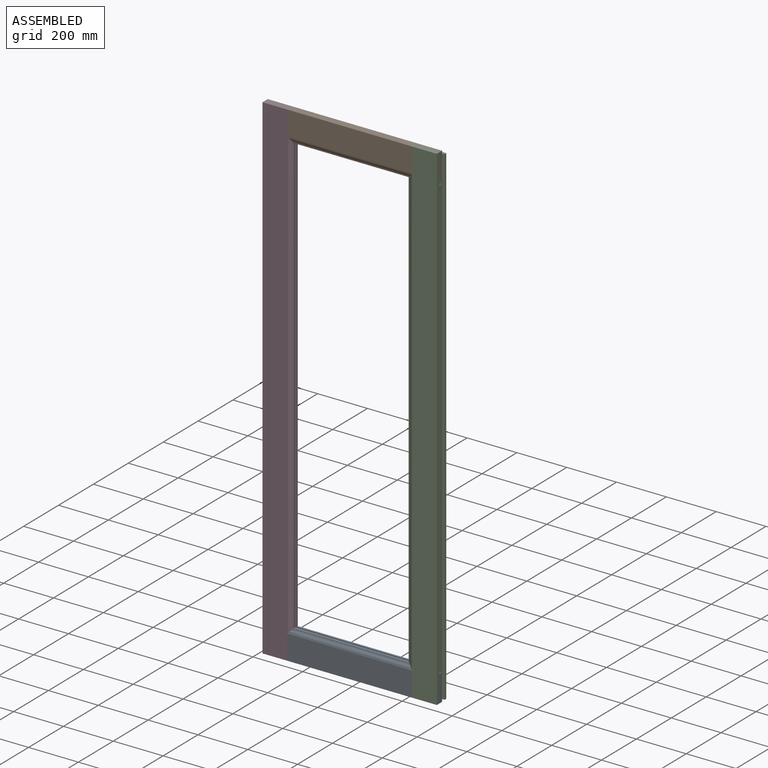
[diagram: assembled view]
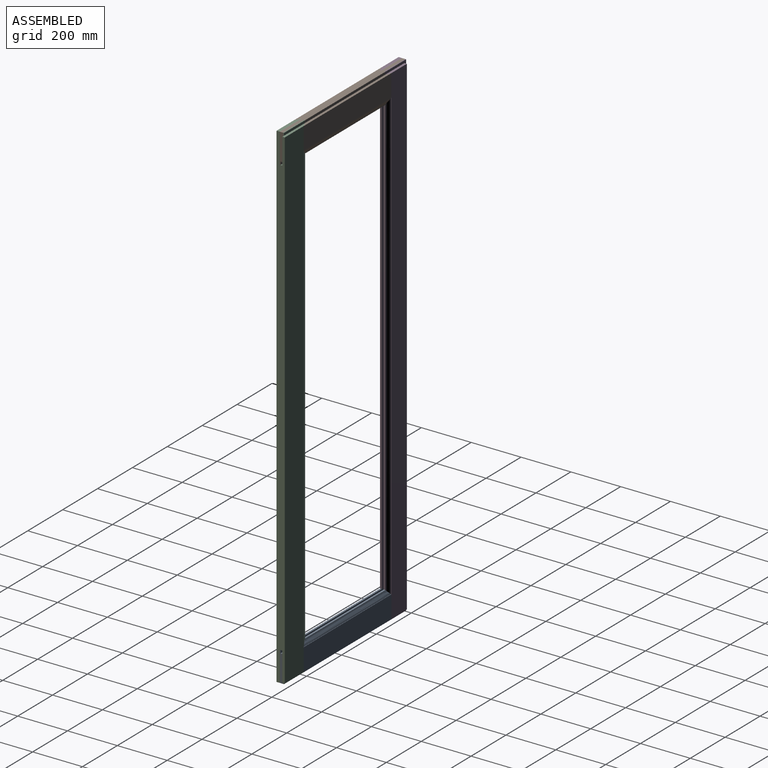
[diagram: assembled view, second angle]
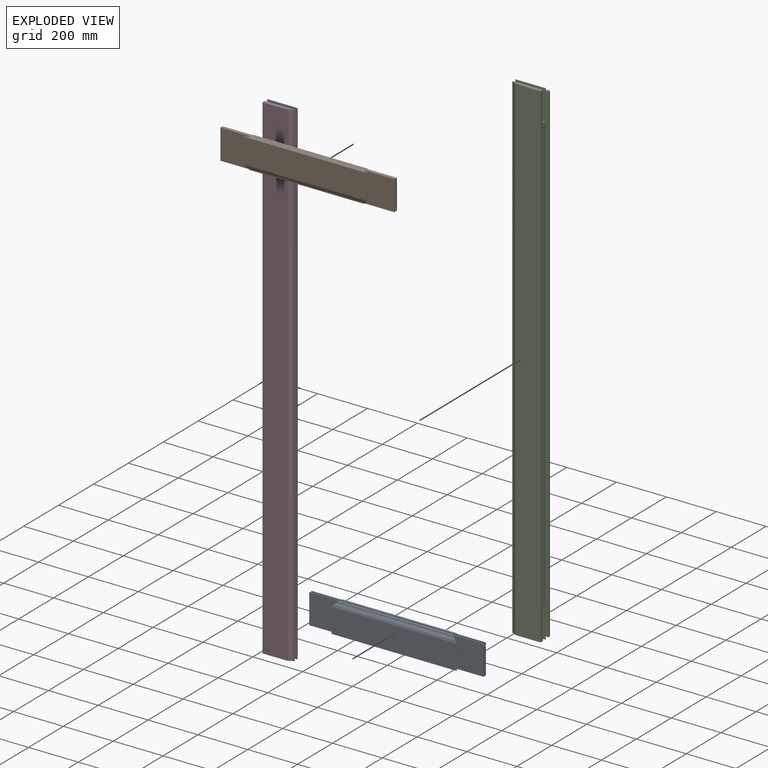
[diagram: exploded view]
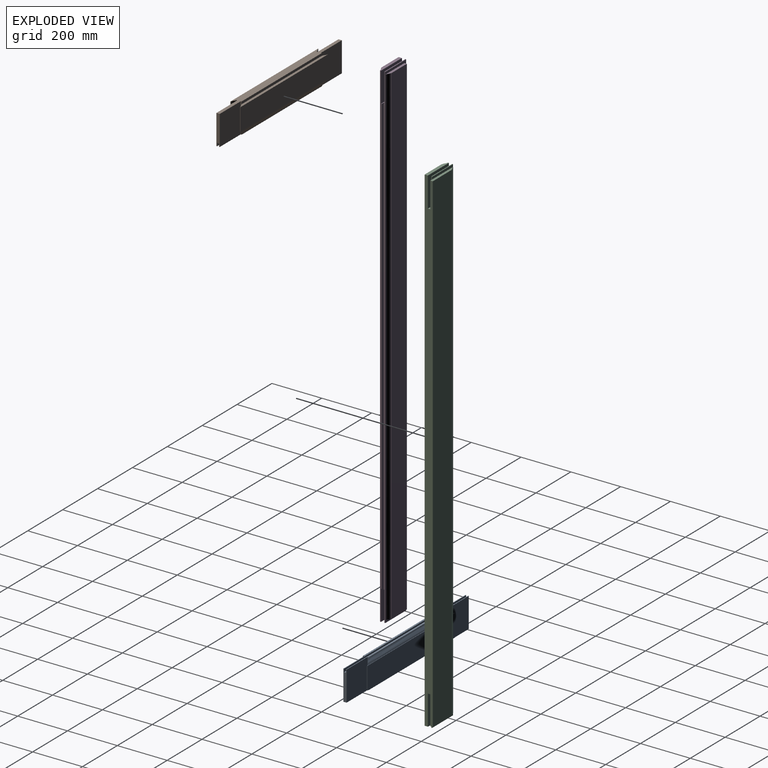
[diagram: exploded view, second angle]
ASSEMBLY  parts=4 mates=3
PART A: 32 faces, bbox 120x40x700 mm
  f0: plane 700x30mm, normal (-1,0,0), area 17224mm2, adj f2,f3,f8,f9,f10,f11,f12,f13
  f1: plane 700x6.67mm, normal (1,0,0), area 3706.7mm2, adj f2,f3,f13,f16,f19,f20,f25,f27
  f2: plane 120x13.33mm, normal (0,0,1), area 1504mm2, adj f0,f1,f4,f13,f14,f27,f28,f29
  f3: plane 120x13.33mm, normal (0,0,-1), area 1504mm2, adj f0,f1,f4,f11,f16,f27,f28,f29
  f4: plane 700x6.67mm, normal (1,0,0), area 3706.7mm2, adj f2,f3,f11,f14,f17,f21,f23,f29
  f5: plane 502x89mm, normal (0,-1,0), area 44678mm2, adj f6,f7,f24,f31
  f6: plane 89x1.33mm, normal (0,0,-1), area 118.7mm2, adj f5,f18,f24,f31
  f7: plane 89x1.33mm, normal (0,0,1), area 118.7mm2, adj f5,f22,f24,f31
  f8: extruded ~120x21mm, area 2504mm2, adj f0,f12,f19,f25
  f9: extruded ~120x21mm, area 2504mm2, adj f0,f15,f20,f25
  f10: plane 502x99mm, normal (0,1,0), area 49698mm2, adj f0,f12,f15,f26
  f11: plane 120x120mm, normal (0,-1,0), area 14400mm2, adj f0,f3,f4,f17
  f12: plane 99x1.33mm, normal (0,0,1), area 132mm2, adj f0,f8,f10,f26
  f13: plane 120x120mm, normal (0,1,0), area 14400mm2, adj f0,f1,f2,f19
  f14: plane 120x120mm, normal (0,-1,0), area 14400mm2, adj f0,f2,f4,f21
  f15: plane 99x1.33mm, normal (0,0,-1), area 132mm2, adj f0,f9,f10,f26
  f16: plane 120x120mm, normal (0,1,0), area 14400mm2, adj f0,f1,f3,f20
  f17: plane 120x4mm, normal (0,0,-1), area 473.3mm2, adj f0,f4,f11,f18,f30,f31
  f18: extruded ~110x21mm, area 2275.3mm2, adj f6,f17,f23,f31
  f19: plane 120x4mm, normal (0,0,1), area 480mm2, adj f0,f1,f8,f13
  f20: plane 120x4mm, normal (0,0,-1), area 480mm2, adj f0,f1,f9,f16
  f21: plane 120x4mm, normal (0,0,1), area 473.3mm2, adj f0,f4,f14,f22,f30,f31
  f22: extruded ~110x21mm, area 2275.3mm2, adj f7,f21,f23,f31
  f23: extruded ~502x21mm, area 10999.2mm2, adj f4,f18,f22,f24
  f24: plane 502x1.33mm, normal (1,0,0), area 669.3mm2, adj f5,f6,f7,f23
  f25: extruded ~502x21mm, area 10999.2mm2, adj f1,f8,f9,f26
  f26: plane 502x1.33mm, normal (1,0,0), area 669.3mm2, adj f10,f12,f15,f25
  f27: plane 700x12mm, normal (0,-1,0), area 8400mm2, adj f1,f2,f3,f28
  f28: plane 700x8mm, normal (1,0,0), area 5600mm2, adj f2,f3,f27,f29
  f29: plane 700x12mm, normal (0,1,0), area 8400mm2, adj f2,f3,f4,f28
  f30: plane 460x10mm, normal (0,-1,0), area 4600mm2, adj f0,f17,f21,f31
  f31: plane 502x10mm, normal (-1,0,0), area 4824mm2, adj f5,f6,f7,f17,f18,f21,f22,f30
PART B: same geometry as A
PART C: 28 faces, bbox 130x40x2000 mm
  f0: plane 1980x109mm, normal (0,-1,0), area 215820mm2, adj f2,f23,f25,f27
  f1: plane 2000x30mm, normal (1,0,0), area 56800mm2, adj f4,f5,f6,f7,f9,f11,f12,f13
  f2: plane 1980x1.33mm, normal (-1,0,0), area 2633.4mm2, adj f0,f3,f23,f25
  f3: extruded ~1980x21mm, area 45277.4mm2, adj f2,f10,f23,f25
  f4: plane 120x3.33mm, normal (0,0,1), area 400mm2, adj f1,f10,f14,f22
  f5: plane 120x3.33mm, normal (0,0,-1), area 400mm2, adj f1,f10,f16,f24
  f6: plane 120x13.33mm, normal (0,0,1), area 1488.1mm2, adj f1,f8,f9,f13,f20,f21
  f7: plane 120x13.33mm, normal (0,0,-1), area 1488.1mm2, adj f1,f8,f9,f15,f20,f21
  f8: plane 2000x6.67mm, normal (-1,0,0), area 12700mm2, adj f6,f7,f11,f12,f13,f15,f17,f21
  f9: plane 2000x99mm, normal (0,1,0), area 198000mm2, adj f1,f6,f7,f20
  f10: plane 2000x6.67mm, normal (-1,0,0), area 12686.6mm2, adj f3,f4,f5,f11,f12,f14,f16,f18
  f11: plane 120x13.33mm, normal (0,0,1), area 1504mm2, adj f1,f8,f10,f13,f14,f17,f18,f19
  f12: plane 120x13.33mm, normal (0,0,-1), area 1504mm2, adj f1,f8,f10,f15,f16,f17,f18,f19
  f13: plane 120x120mm, normal (0,-1,0), area 14400mm2, adj f1,f6,f8,f11
  f14: plane 120x120mm, normal (0,1,0), area 14400mm2, adj f1,f4,f10,f11
  f15: plane 120x120mm, normal (0,-1,0), area 14400mm2, adj f1,f7,f8,f12
  f16: plane 120x120mm, normal (0,1,0), area 14400mm2, adj f1,f5,f10,f12
  f17: plane 1760x12mm, normal (0,-1,0), area 21120mm2, adj f8,f11,f12,f19
  f18: plane 1760x12mm, normal (0,1,0), area 21120mm2, adj f10,f11,f12,f19
  f19: plane 1760x8mm, normal (-1,0,0), area 14080mm2, adj f11,f12,f17,f18
  f20: plane 2000x1.33mm, normal (-1,0,0), area 2660mm2, adj f6,f7,f9,f21
  f21: extruded ~2000x21mm, area 45734.8mm2, adj f6,f7,f8,f20
  f22: plane 120x10mm, normal (0,-1,0), area 1200mm2, adj f1,f4,f10,f23
  f23: plane 130x10mm, normal (0,0,1), area 1188.1mm2, adj f0,f2,f3,f10,f22,f26,f27
  f24: plane 120x10mm, normal (0,-1,0), area 1200mm2, adj f1,f5,f10,f25
  f25: plane 130x10mm, normal (0,0,-1), area 1188.1mm2, adj f0,f2,f3,f10,f24,f26,f27
  f26: plane 1980x10mm, normal (0,1,0), area 19800mm2, adj f1,f23,f25,f27
  f27: plane 1980x10mm, normal (1,0,0), area 19800mm2, adj f0,f23,f25,f26
PART D: 26 faces, bbox 120x40x2000 mm
  f0: plane 1980x89mm, normal (0,-1,0), area 176220mm2, adj f1,f3,f24,f25
  f1: plane 1980x1.33mm, normal (1,0,0), area 2633.4mm2, adj f0,f2,f24,f25
  f2: extruded ~1980x21mm, area 45277.4mm2, adj f1,f7,f24,f25
  f3: plane 1980x10mm, normal (-1,0,0), area 19800mm2, adj f0,f23,f24,f25
  f4: plane 120x3.33mm, normal (0,0,-1), area 400mm2, adj f7,f11,f17,f23
  f5: plane 120x3.33mm, normal (0,0,1), area 400mm2, adj f7,f11,f15,f23
  f6: plane 120x13.33mm, normal (0,0,-1), area 1488.1mm2, adj f8,f11,f12,f16,f21,f22
  f7: plane 2000x6.67mm, normal (1,0,0), area 12686.6mm2, adj f2,f4,f5,f9,f10,f15,f17,f20
  f8: plane 2000x6.67mm, normal (1,0,0), area 12700mm2, adj f6,f9,f10,f13,f14,f16,f19,f22
  f9: plane 120x13.33mm, normal (0,0,1), area 1504mm2, adj f7,f8,f11,f14,f15,f18,f19,f20
  f10: plane 120x13.33mm, normal (0,0,-1), area 1504mm2, adj f7,f8,f11,f16,f17,f18,f19,f20
  f11: plane 2000x30mm, normal (-1,0,0), area 56800mm2, adj f4,f5,f6,f9,f10,f12,f13,f14
  f12: plane 2000x99mm, normal (0,1,0), area 198000mm2, adj f6,f11,f13,f21
  f13: plane 120x13.33mm, normal (0,0,1), area 1488.1mm2, adj f8,f11,f12,f14,f21,f22
  f14: plane 120x120mm, normal (0,-1,0), area 14400mm2, adj f8,f9,f11,f13
  f15: plane 120x120mm, normal (0,1,0), area 14400mm2, adj f5,f7,f9,f11
  f16: plane 120x120mm, normal (0,-1,0), area 14400mm2, adj f6,f8,f10,f11
  f17: plane 120x120mm, normal (0,1,0), area 14400mm2, adj f4,f7,f10,f11
  f18: plane 1760x8mm, normal (1,0,0), area 14080mm2, adj f9,f10,f19,f20
  f19: plane 1760x12mm, normal (0,-1,0), area 21120mm2, adj f8,f9,f10,f18
  f20: plane 1760x12mm, normal (0,1,0), area 21120mm2, adj f7,f9,f10,f18
  f21: plane 2000x1.33mm, normal (1,0,0), area 2660mm2, adj f6,f12,f13,f22
  f22: extruded ~2000x21mm, area 45734.8mm2, adj f6,f8,f13,f21
  f23: plane 2000x120mm, normal (0,-1,0), area 22200mm2, adj f3,f4,f5,f7,f11,f24,f25
  f24: plane 110x10mm, normal (0,0,1), area 988.1mm2, adj f0,f1,f2,f3,f7,f23
  f25: plane 110x10mm, normal (0,0,-1), area 988.1mm2, adj f0,f1,f2,f3,f7,f23
PLACE A rot(axis=(0.71,0,0.71),180deg) t=(-350,24.22,220)mm
PLACE B rot(axis=(-0.71,0,0.71),180deg) t=(350,24.22,1780)mm
PLACE C rot(axis=(-1,0,0),180deg) t=(130,24.22,2000)mm
PLACE D rot(axis=(1,0,0),180deg) t=(-130,24.22,2000)mm
MATE fastened C.f16 <-> B.f11  axis (0,-1,0) through (290,10.89,1940)mm
MATE fastened A.f16 <-> D.f14  axis (0,-1,0) through (-290,-2.45,60)mm
MATE fastened D.f17 <-> B.f14  axis (0,-1,0) through (-290,10.89,1940)mm
